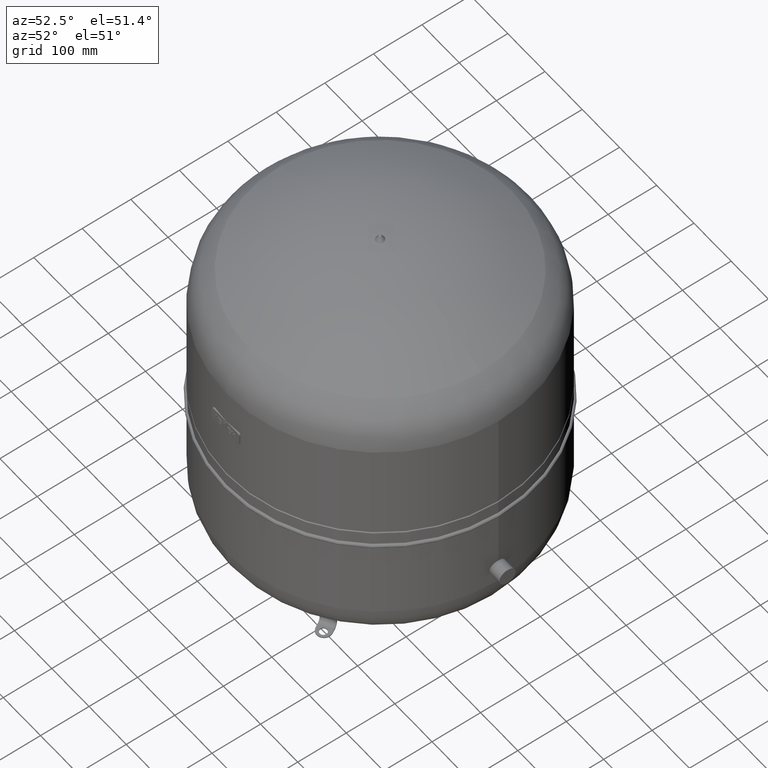
[diagram: clean part render]
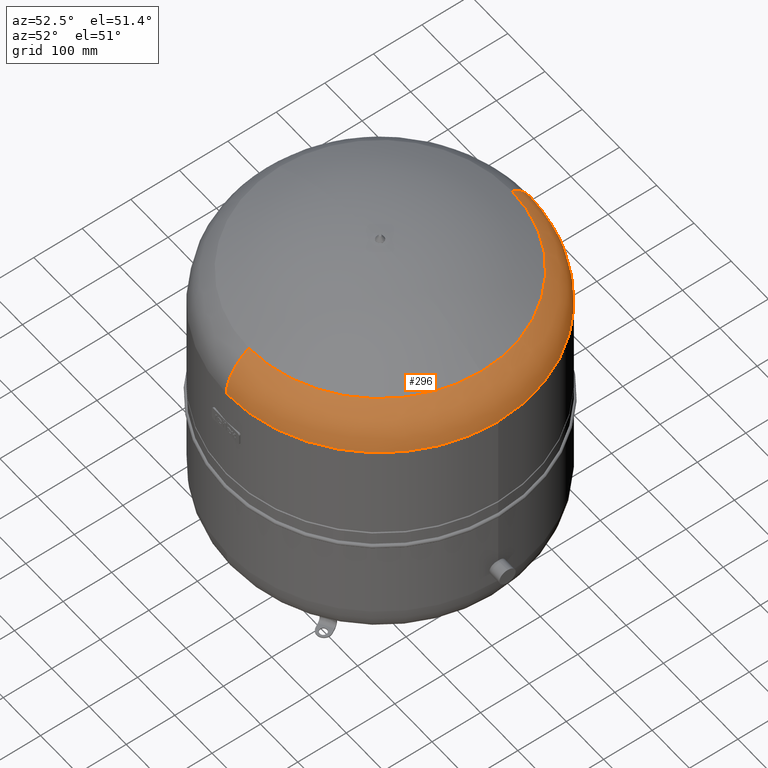
[diagram: same view with one face highlighted and labeled with its STEP entity id]
A machine part, auxiliary view. The second image highlights one B-rep face of the part: STEP entity #296.
In plain terms, the highlighted face is a freeform B-spline surface patch.
Its self-contained STEP definition (entity closure, byte-faithful):
#170=CARTESIAN_POINT('',(317.0,9.105293E-015,586.24055062737136));
#171=VERTEX_POINT('',#170);
#178=CARTESIAN_POINT('',(9.762260E-031,-317.00000000000011,586.24055062737159));
#179=VERTEX_POINT('',#178);
#180=CARTESIAN_POINT('',(-1.556097E-014,-2.971473E-014,586.24055062737136));
#181=DIRECTION('',(0.0,0.0,1.0));
#182=DIRECTION('',(-1.0,0.0,0.0));
#183=AXIS2_PLACEMENT_3D('',#180,#181,#182);
#184=CIRCLE('',#183,317.00000000000006);
#185=EDGE_CURVE('',#179,#171,#184,.T.);
#197=CARTESIAN_POINT('',(-1.457282E-014,119.0,586.24055062737102));
#198=CARTESIAN_POINT('',(-5.049191E-015,118.99999999999974,685.24055062737125));
#199=CARTESIAN_POINT('',(-1.717279E-014,217.99999999999997,685.24055062737125));
#200=CARTESIAN_POINT('',(-2.929640E-014,317.00000000000023,685.24055062737125));
#201=CARTESIAN_POINT('',(-3.882002E-014,316.99999999999994,586.24055062737091));
#202=CARTESIAN_POINT('',(-119.00000000000001,118.99999999999994,586.24055062737102));
#203=CARTESIAN_POINT('',(-118.99999999999973,118.9999999999997,685.24055062737125));
#204=CARTESIAN_POINT('',(-217.99999999999994,217.99999999999989,685.24055062737125));
#205=CARTESIAN_POINT('',(-317.00000000000023,317.00000000000011,685.24055062737125));
#206=CARTESIAN_POINT('',(-317.0,316.99999999999989,586.24055062737091));
#207=CARTESIAN_POINT('',(-119.00000000000003,-4.428754E-014,586.24055062737102));
#208=CARTESIAN_POINT('',(-118.99999999999974,-2.610154E-014,685.24055062737125));
#209=CARTESIAN_POINT('',(-217.99999999999997,-3.822514E-014,685.24055062737125));
#210=CARTESIAN_POINT('',(-317.00000000000023,-5.034875E-014,685.24055062737125));
#211=CARTESIAN_POINT('',(-317.0,-6.853475E-014,586.24055062737102));
#212=CARTESIAN_POINT('',(-118.99999999999999,-119.00000000000004,586.24055062737102));
#213=CARTESIAN_POINT('',(-118.9999999999997,-118.99999999999976,685.24055062737125));
#214=CARTESIAN_POINT('',(-217.99999999999989,-217.99999999999994,685.24055062737125));
#215=CARTESIAN_POINT('',(-317.00000000000011,-317.00000000000023,685.24055062737125));
#216=CARTESIAN_POINT('',(-316.99999999999989,-317.0,586.24055062737114));
#217=CARTESIAN_POINT('',(1.457282E-014,-119.00000000000006,586.24055062737102));
#218=CARTESIAN_POINT('',(2.409644E-014,-118.99999999999977,685.24055062737125));
#219=CARTESIAN_POINT('',(3.622004E-014,-217.99999999999997,685.24055062737125));
#220=CARTESIAN_POINT('',(4.834365E-014,-317.00000000000023,685.24055062737125));
#221=CARTESIAN_POINT('',(3.882002E-014,-317.00000000000006,586.24055062737114));
#222=CARTESIAN_POINT('',(119.00000000000001,-119.00000000000001,586.24055062737102));
#223=CARTESIAN_POINT('',(118.99999999999976,-118.99999999999973,685.24055062737125));
#224=CARTESIAN_POINT('',(217.99999999999994,-217.99999999999989,685.24055062737125));
#225=CARTESIAN_POINT('',(317.00000000000023,-317.00000000000017,685.24055062737125));
#226=CARTESIAN_POINT('',(317.0,-316.99999999999994,586.24055062737114));
#227=CARTESIAN_POINT('',(119.00000000000003,-1.514191E-014,586.24055062737102));
#228=CARTESIAN_POINT('',(118.99999999999977,3.044092E-015,685.24055062737125));
#229=CARTESIAN_POINT('',(217.99999999999997,1.516769E-014,685.24055062737125));
#230=CARTESIAN_POINT('',(317.00000000000023,2.729130E-014,685.24055062737125));
#231=CARTESIAN_POINT('',(317.0,9.105293E-015,586.24055062737102));
#232=CARTESIAN_POINT('',(118.99999999999999,118.99999999999999,586.24055062737102));
#233=CARTESIAN_POINT('',(118.99999999999973,118.99999999999973,685.24055062737125));
#234=CARTESIAN_POINT('',(217.99999999999989,217.99999999999994,685.24055062737125));
#235=CARTESIAN_POINT('',(317.00000000000011,317.00000000000017,685.24055062737125));
#236=CARTESIAN_POINT('',(316.99999999999989,316.99999999999994,586.24055062737091));
#237=CARTESIAN_POINT('',(-1.457282E-014,119.0,586.24055062737102));
#238=CARTESIAN_POINT('',(-5.049191E-015,118.99999999999974,685.24055062737125));
#239=CARTESIAN_POINT('',(-1.717279E-014,217.99999999999997,685.24055062737125));
#240=CARTESIAN_POINT('',(-2.929640E-014,317.00000000000023,685.24055062737125));
#241=CARTESIAN_POINT('',(-3.882002E-014,316.99999999999994,586.24055062737091));
#249=(BOUNDED_SURFACE()B_SPLINE_SURFACE(2,2,((#197,#202,#207,#212,#217,#222,#227,#232,#237),(#198,#203,#208,#213,#218,#223,#228,#233,#238),(#199,#204,#209,#214,#219,#224,#229,#234,#239),(#200,#205,#210,#215,#220,#225,#230,#235,#240),(#201,#206,#211,#216,#221,#226,#231,#236,#241)),.UNSPECIFIED.,.F.,.T.,.U.)B_SPLINE_SURFACE_WITH_KNOTS((3,2,3),(3,2,2,2,3),(-3.141592653589796,-1.570796326794897,2.884905E-015),(0.0,1.570796326794897,3.141592653589793,4.71238898038469,6.283185307179586),.UNSPECIFIED.)GEOMETRIC_REPRESENTATION_ITEM()RATIONAL_B_SPLINE_SURFACE(((1.0,0.707106781186548,1.0,0.707106781186548,1.0,0.707106781186548,1.0,0.707106781186548,1.0),(0.707106781186546,0.499999999999999,0.707106781186546,0.499999999999999,0.707106781186546,0.499999999999999,0.707106781186546,0.499999999999999,0.707106781186546),(1.0,0.707106781186548,1.0,0.707106781186548,1.0,0.707106781186548,1.0,0.707106781186548,1.0),(0.707106781186547,0.499999999999999,0.707106781186547,0.499999999999999,0.707106781186547,0.499999999999999,0.707106781186547,0.499999999999999,0.707106781186547),(1.0,0.707106781186548,1.0,0.707106781186548,1.0,0.707106781186548,1.0,0.707106781186548,1.0)))REPRESENTATION_ITEM('')SURFACE());
#250=CARTESIAN_POINT('',(8.065826E-015,-270.63902439024383,670.08643968129752));
#251=VERTEX_POINT('',#250);
#252=CARTESIAN_POINT('',(0.0,-218.00000000000003,586.24055062737148));
#253=DIRECTION('',(-1.0,0.0,0.0));
#254=DIRECTION('',(0.0,-1.0,0.0));
#255=AXIS2_PLACEMENT_3D('',#252,#253,#254);
#256=CIRCLE('',#255,99.0);
#257=EDGE_CURVE('',#179,#251,#256,.T.);
#258=ORIENTED_EDGE('',*,*,#257,.F.);
#259=ORIENTED_EDGE('',*,*,#185,.T.);
#260=CARTESIAN_POINT('',(-3.882002E-014,317.0,586.24055062737114));
#261=VERTEX_POINT('',#260);
#262=CARTESIAN_POINT('',(-1.556097E-014,-2.971473E-014,586.24055062737136));
#263=DIRECTION('',(0.0,0.0,1.0));
#264=DIRECTION('',(-1.0,0.0,0.0));
#265=AXIS2_PLACEMENT_3D('',#262,#263,#264);
#266=CIRCLE('',#265,317.00000000000006);
#267=EDGE_CURVE('',#171,#261,#266,.T.);
#268=ORIENTED_EDGE('',*,*,#267,.T.);
#269=CARTESIAN_POINT('',(-2.507680E-014,270.63902439024383,670.08643968129752));
#270=VERTEX_POINT('',#269);
#271=CARTESIAN_POINT('',(-2.669642E-014,217.99999999999997,586.24055062737125));
#272=DIRECTION('',(1.0,0.0,0.0));
#273=DIRECTION('',(0.0,1.0,0.0));
#274=AXIS2_PLACEMENT_3D('',#271,#272,#273);
#275=CIRCLE('',#274,99.0);
#276=EDGE_CURVE('',#261,#270,#275,.T.);
#277=ORIENTED_EDGE('',*,*,#276,.T.);
#278=CARTESIAN_POINT('',(270.63902439024383,-9.350178E-014,670.08643968129752));
#279=VERTEX_POINT('',#278);
#280=CARTESIAN_POINT('',(-7.495146E-015,-1.431249E-014,670.08643968129752));
#281=DIRECTION('',(0.0,0.0,1.0));
#282=DIRECTION('',(-1.0,0.0,0.0));
#283=AXIS2_PLACEMENT_3D('',#280,#281,#282);
#284=CIRCLE('',#283,270.63902439024383);
#285=EDGE_CURVE('',#279,#270,#284,.T.);
#286=ORIENTED_EDGE('',*,*,#285,.F.);
#287=CARTESIAN_POINT('',(-7.495146E-015,-1.431249E-014,670.08643968129752));
#288=DIRECTION('',(0.0,0.0,1.0));
#289=DIRECTION('',(-1.0,0.0,0.0));
#290=AXIS2_PLACEMENT_3D('',#287,#288,#289);
#291=CIRCLE('',#290,270.63902439024383);
#292=EDGE_CURVE('',#251,#279,#291,.T.);
#293=ORIENTED_EDGE('',*,*,#292,.F.);
#294=EDGE_LOOP('',(#258,#259,#268,#277,#286,#293));
#295=FACE_OUTER_BOUND('',#294,.T.);
#296=ADVANCED_FACE('',(#295),#249,.T.);